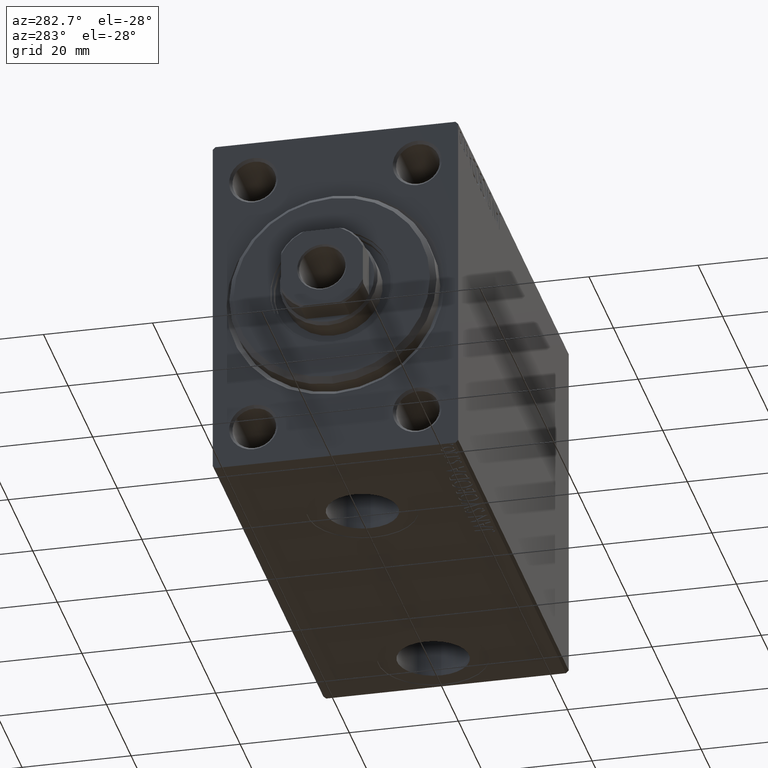
[diagram: clean part render]
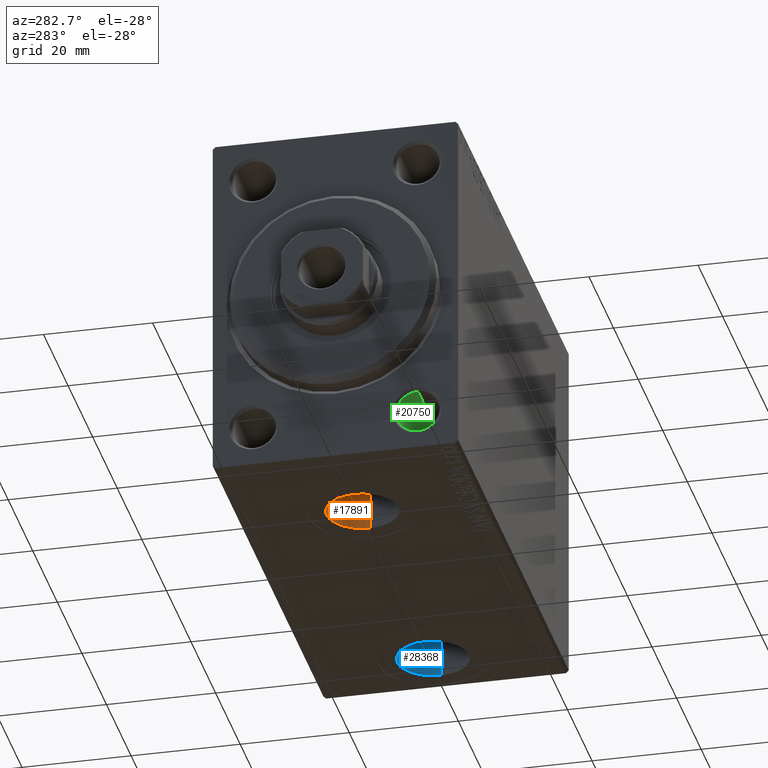
[diagram: same view with three faces highlighted in distinct colors, each labeled with its STEP entity id]
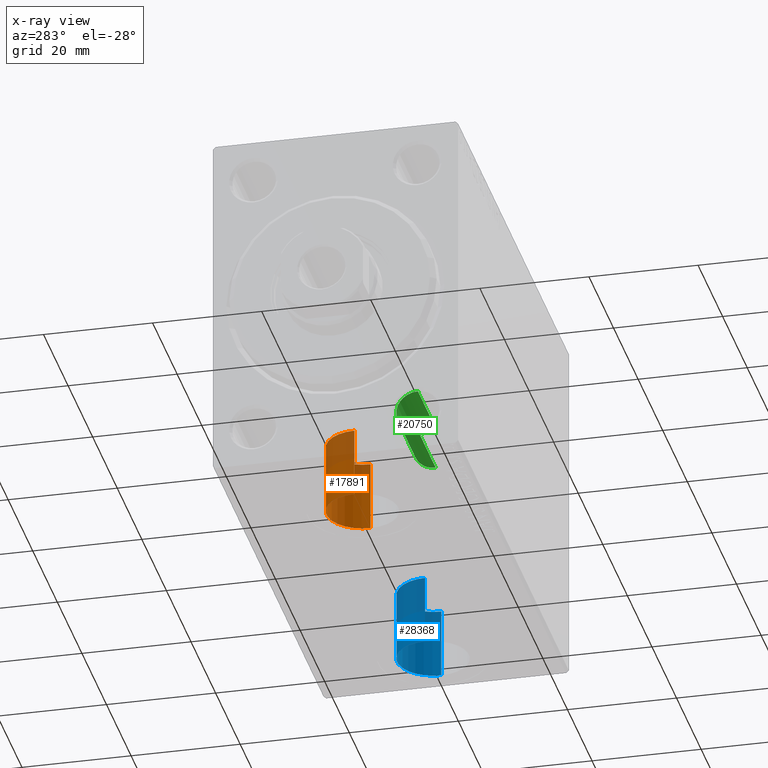
[diagram: x-ray of the same camera — body ghosted, the three highlighted faces saturated]
A machine part, auxiliary view with three faces highlighted in distinct colors.
The next image is the same camera in x-ray (body ghosted, the three faces saturated) — at least one of them is partly hidden behind the body in this view.
Their STEP definitions:

[orange] entity #17891 — the highlighted cylindrical surface (partial cylindrical patch) has radius 6.58 mm, axis along (-0, -0, -1).
#286 = DIRECTION ( 'NONE',  ( -1.000000000000000000, 0.000000000000000000, 0.000000000000000000 ) ) ;
#1254 = CARTESIAN_POINT ( 'NONE',  ( 28.58000000000000185, -2.104865637442060750E-15, -19.50000000000000355 ) ) ;
#1264 = CARTESIAN_POINT ( 'NONE',  ( 15.41999999999999638, -2.910683231281019398E-15, -19.50000000000000355 ) ) ;
#1980 = EDGE_CURVE ( 'NONE', #30933, #30727, #13688, .T. ) ;
#5582 = AXIS2_PLACEMENT_3D ( 'NONE', #17843, #31887, #286 ) ;
#6202 = CIRCLE ( 'NONE', #41529, 6.580000000000002736 ) ;
#7693 = DIRECTION ( 'NONE',  ( -1.000000000000000000, 0.000000000000000000, 0.000000000000000000 ) ) ;
#8015 = CARTESIAN_POINT ( 'NONE',  ( 28.58000000000000185, -2.104865637442060750E-15, -32.40000000000000568 ) ) ;
#8277 = VECTOR ( 'NONE', #33302, 1000.000000000000000 ) ;
#9637 = VERTEX_POINT ( 'NONE', #24785 ) ;
#11069 = LINE ( 'NONE', #39638, #24655 ) ;
#13090 = CARTESIAN_POINT ( 'NONE',  ( 15.41999999999999638, -2.910683231281019398E-15, -32.40000000000000568 ) ) ;
#13688 = CIRCLE ( 'NONE', #5582, 6.580000000000002736 ) ;
#13922 = CARTESIAN_POINT ( 'NONE',  ( 22.00000000000000000, -2.910683231281019398E-15, -19.50000000000000355 ) ) ;
#14607 = CYLINDRICAL_SURFACE ( 'NONE', #42021, 6.580000000000002736 ) ;
#15284 = ORIENTED_EDGE ( 'NONE', *, *, #21712, .F. ) ;
#16595 = CARTESIAN_POINT ( 'NONE',  ( 22.00000000000000000, -2.910683231281019398E-15, -19.50000000000000355 ) ) ;
#17843 = CARTESIAN_POINT ( 'NONE',  ( 22.00000000000000000, -2.910683231281019398E-15, -32.40000000000000568 ) ) ;
#17891 = ADVANCED_FACE ( 'NONE', ( #21080 ), #14607, .F. ) ;
#21080 = FACE_OUTER_BOUND ( 'NONE', #43517, .T. ) ;
#21687 = DIRECTION ( 'NONE',  ( -0.000000000000000000, -0.000000000000000000, -1.000000000000000000 ) ) ;
#21712 = EDGE_CURVE ( 'NONE', #9637, #30727, #32856, .T. ) ;
#24301 = DIRECTION ( 'NONE',  ( -0.000000000000000000, -0.000000000000000000, -1.000000000000000000 ) ) ;
#24655 = VECTOR ( 'NONE', #21687, 1000.000000000000000 ) ;
#24785 = CARTESIAN_POINT ( 'NONE',  ( 28.58000000000000185, -2.104865637442060750E-15, -19.50000000000000355 ) ) ;
#29959 = DIRECTION ( 'NONE',  ( 0.000000000000000000, 0.000000000000000000, -1.000000000000000000 ) ) ;
#30090 = VERTEX_POINT ( 'NONE', #1264 ) ;
#30408 = DIRECTION ( 'NONE',  ( -1.000000000000000000, 0.000000000000000000, 0.000000000000000000 ) ) ;
#30727 = VERTEX_POINT ( 'NONE', #8015 ) ;
#30933 = VERTEX_POINT ( 'NONE', #13090 ) ;
#31887 = DIRECTION ( 'NONE',  ( 0.000000000000000000, 0.000000000000000000, -1.000000000000000000 ) ) ;
#32856 = LINE ( 'NONE', #1254, #8277 ) ;
#33302 = DIRECTION ( 'NONE',  ( -0.000000000000000000, -0.000000000000000000, -1.000000000000000000 ) ) ;
#34292 = ORIENTED_EDGE ( 'NONE', *, *, #43083, .T. ) ;
#39638 = CARTESIAN_POINT ( 'NONE',  ( 15.41999999999999638, -2.910683231281019398E-15, -19.50000000000000355 ) ) ;
#40618 = ORIENTED_EDGE ( 'NONE', *, *, #40846, .F. ) ;
#40846 = EDGE_CURVE ( 'NONE', #30090, #9637, #6202, .T. ) ;
#41529 = AXIS2_PLACEMENT_3D ( 'NONE', #16595, #29959, #30408 ) ;
#42021 = AXIS2_PLACEMENT_3D ( 'NONE', #13922, #24301, #7693 ) ;
#43083 = EDGE_CURVE ( 'NONE', #30090, #30933, #11069, .T. ) ;
#43416 = ORIENTED_EDGE ( 'NONE', *, *, #1980, .T. ) ;
#43517 = EDGE_LOOP ( 'NONE', ( #15284, #40618, #34292, #43416 ) ) ;

[blue] entity #28368 — the highlighted cylindrical surface (partial cylindrical patch) has radius 6.58 mm, axis along (-0, -0, -1).
#84 = CARTESIAN_POINT ( 'NONE',  ( 79.50000000000001421, -1.012541189921931588E-14, -32.40000000000000568 ) ) ;
#770 = DIRECTION ( 'NONE',  ( 0.000000000000000000, 0.000000000000000000, -1.000000000000000000 ) ) ;
#1092 = VERTEX_POINT ( 'NONE', #19651 ) ;
#1175 = EDGE_CURVE ( 'NONE', #23070, #24034, #7168, .T. ) ;
#3667 = LINE ( 'NONE', #25335, #37158 ) ;
#6241 = CARTESIAN_POINT ( 'NONE',  ( 72.92000000000001592, -1.012541189921931588E-14, -19.50000000000000355 ) ) ;
#6383 = DIRECTION ( 'NONE',  ( -1.000000000000000000, 0.000000000000000000, 0.000000000000000000 ) ) ;
#7168 = LINE ( 'NONE', #24684, #23275 ) ;
#7818 = VERTEX_POINT ( 'NONE', #45047 ) ;
#11501 = DIRECTION ( 'NONE',  ( -0.000000000000000000, -0.000000000000000000, -1.000000000000000000 ) ) ;
#12844 = CARTESIAN_POINT ( 'NONE',  ( 79.50000000000001421, -1.012541189921931588E-14, -19.50000000000000355 ) ) ;
#13014 = CARTESIAN_POINT ( 'NONE',  ( 79.50000000000001421, -1.012541189921931588E-14, -19.50000000000000355 ) ) ;
#13403 = DIRECTION ( 'NONE',  ( -0.000000000000000000, -0.000000000000000000, -1.000000000000000000 ) ) ;
#14447 = ORIENTED_EDGE ( 'NONE', *, *, #36237, .F. ) ;
#18101 = DIRECTION ( 'NONE',  ( -1.000000000000000000, 0.000000000000000000, 0.000000000000000000 ) ) ;
#19651 = CARTESIAN_POINT ( 'NONE',  ( 86.08000000000001251, -9.319594305380356835E-15, -19.50000000000000355 ) ) ;
#20175 = AXIS2_PLACEMENT_3D ( 'NONE', #13014, #44799, #24290 ) ;
#23070 = VERTEX_POINT ( 'NONE', #6241 ) ;
#23275 = VECTOR ( 'NONE', #13403, 1000.000000000000000 ) ;
#23417 = ORIENTED_EDGE ( 'NONE', *, *, #45004, .T. ) ;
#24034 = VERTEX_POINT ( 'NONE', #40828 ) ;
#24290 = DIRECTION ( 'NONE',  ( -1.000000000000000000, 0.000000000000000000, 0.000000000000000000 ) ) ;
#24684 = CARTESIAN_POINT ( 'NONE',  ( 72.92000000000001592, -1.012541189921931588E-14, -19.50000000000000355 ) ) ;
#25335 = CARTESIAN_POINT ( 'NONE',  ( 86.08000000000001251, -9.319594305380356835E-15, -19.50000000000000355 ) ) ;
#26900 = DIRECTION ( 'NONE',  ( -0.000000000000000000, -0.000000000000000000, -1.000000000000000000 ) ) ;
#28368 = ADVANCED_FACE ( 'NONE', ( #30347 ), #44397, .F. ) ;
#30347 = FACE_OUTER_BOUND ( 'NONE', #41884, .T. ) ;
#32061 = CIRCLE ( 'NONE', #37955, 6.580000000000002736 ) ;
#33742 = ORIENTED_EDGE ( 'NONE', *, *, #43834, .F. ) ;
#36237 = EDGE_CURVE ( 'NONE', #23070, #1092, #36334, .T. ) ;
#36334 = CIRCLE ( 'NONE', #20175, 6.580000000000002736 ) ;
#37137 = ORIENTED_EDGE ( 'NONE', *, *, #1175, .T. ) ;
#37158 = VECTOR ( 'NONE', #11501, 1000.000000000000000 ) ;
#37955 = AXIS2_PLACEMENT_3D ( 'NONE', #84, #770, #18101 ) ;
#37969 = AXIS2_PLACEMENT_3D ( 'NONE', #12844, #26900, #6383 ) ;
#40828 = CARTESIAN_POINT ( 'NONE',  ( 72.92000000000001592, -1.012541189921931588E-14, -32.40000000000000568 ) ) ;
#41884 = EDGE_LOOP ( 'NONE', ( #33742, #14447, #37137, #23417 ) ) ;
#43834 = EDGE_CURVE ( 'NONE', #1092, #7818, #3667, .T. ) ;
#44397 = CYLINDRICAL_SURFACE ( 'NONE', #37969, 6.580000000000002736 ) ;
#44799 = DIRECTION ( 'NONE',  ( 0.000000000000000000, 0.000000000000000000, -1.000000000000000000 ) ) ;
#45004 = EDGE_CURVE ( 'NONE', #24034, #7818, #32061, .T. ) ;
#45047 = CARTESIAN_POINT ( 'NONE',  ( 86.08000000000001251, -9.319594305380356835E-15, -32.40000000000000568 ) ) ;

[green] entity #20750 — the highlighted cylindrical surface (edge-blend (fillet) strip) has radius 4 mm, axis along (-1, -0, -0).
#246 = AXIS2_PLACEMENT_3D ( 'NONE', #21056, #38555, #17155 ) ;
#636 = DIRECTION ( 'NONE',  ( -1.000000000000000000, 0.000000000000000000, 0.000000000000000000 ) ) ;
#1736 = VERTEX_POINT ( 'NONE', #4266 ) ;
#2689 = DIRECTION ( 'NONE',  ( -1.000000000000000000, -0.000000000000000000, -0.000000000000000000 ) ) ;
#4071 = ORIENTED_EDGE ( 'NONE', *, *, #21415, .T. ) ;
#4266 = CARTESIAN_POINT ( 'NONE',  ( 0.4999999999999917843, -15.00000000000000000, -21.00000000000000355 ) ) ;
#4958 = CARTESIAN_POINT ( 'NONE',  ( 0.4999999999999917843, -15.00000000000000000, -28.99999999999999645 ) ) ;
#5303 = CIRCLE ( 'NONE', #28877, 3.999999999999996447 ) ;
#5900 = ORIENTED_EDGE ( 'NONE', *, *, #7296, .F. ) ;
#6647 = ORIENTED_EDGE ( 'NONE', *, *, #11859, .T. ) ;
#6675 = EDGE_LOOP ( 'NONE', ( #5900, #14541, #6647, #4071 ) ) ;
#7296 = EDGE_CURVE ( 'NONE', #7711, #26458, #14504, .T. ) ;
#7711 = VERTEX_POINT ( 'NONE', #33550 ) ;
#8946 = DIRECTION ( 'NONE',  ( -1.000000000000000000, -0.000000000000000000, -0.000000000000000000 ) ) ;
#11490 = CARTESIAN_POINT ( 'NONE',  ( 15.00000000000000000, -15.00000000000000000, -21.00000000000000355 ) ) ;
#11859 = EDGE_CURVE ( 'NONE', #25580, #1736, #12188, .T. ) ;
#12188 = LINE ( 'NONE', #36850, #14015 ) ;
#12397 = VECTOR ( 'NONE', #43281, 1000.000000000000000 ) ;
#13301 = FACE_OUTER_BOUND ( 'NONE', #6675, .T. ) ;
#14015 = VECTOR ( 'NONE', #8946, 1000.000000000000000 ) ;
#14504 = LINE ( 'NONE', #39157, #12397 ) ;
#14541 = ORIENTED_EDGE ( 'NONE', *, *, #39762, .F. ) ;
#17090 = AXIS2_PLACEMENT_3D ( 'NONE', #34281, #2689, #40722 ) ;
#17155 = DIRECTION ( 'NONE',  ( 0.000000000000000000, 0.000000000000000000, 1.000000000000000000 ) ) ;
#20174 = CIRCLE ( 'NONE', #246, 3.999999999999996447 ) ;
#20750 = ADVANCED_FACE ( 'NONE', ( #13301 ), #23218, .F. ) ;
#20972 = DIRECTION ( 'NONE',  ( 0.000000000000000000, 0.000000000000000000, -1.000000000000000000 ) ) ;
#21056 = CARTESIAN_POINT ( 'NONE',  ( 15.00000000000000000, -15.00000000000000000, -25.00000000000000000 ) ) ;
#21415 = EDGE_CURVE ( 'NONE', #1736, #26458, #5303, .T. ) ;
#23218 = CYLINDRICAL_SURFACE ( 'NONE', #17090, 3.999999999999996447 ) ;
#25580 = VERTEX_POINT ( 'NONE', #11490 ) ;
#26458 = VERTEX_POINT ( 'NONE', #4958 ) ;
#28877 = AXIS2_PLACEMENT_3D ( 'NONE', #45588, #636, #20972 ) ;
#33550 = CARTESIAN_POINT ( 'NONE',  ( 15.00000000000000000, -15.00000000000000000, -28.99999999999999645 ) ) ;
#34281 = CARTESIAN_POINT ( 'NONE',  ( 0.000000000000000000, -15.00000000000000000, -25.00000000000000000 ) ) ;
#36850 = CARTESIAN_POINT ( 'NONE',  ( 0.000000000000000000, -15.00000000000000000, -21.00000000000000355 ) ) ;
#38555 = DIRECTION ( 'NONE',  ( -1.000000000000000000, -0.000000000000000000, -0.000000000000000000 ) ) ;
#39157 = CARTESIAN_POINT ( 'NONE',  ( 0.000000000000000000, -15.00000000000000000, -28.99999999999999645 ) ) ;
#39762 = EDGE_CURVE ( 'NONE', #25580, #7711, #20174, .T. ) ;
#40722 = DIRECTION ( 'NONE',  ( 0.000000000000000000, 0.000000000000000000, 1.000000000000000000 ) ) ;
#43281 = DIRECTION ( 'NONE',  ( -1.000000000000000000, -0.000000000000000000, -0.000000000000000000 ) ) ;
#45588 = CARTESIAN_POINT ( 'NONE',  ( 0.4999999999999917843, -15.00000000000000000, -25.00000000000000000 ) ) ;